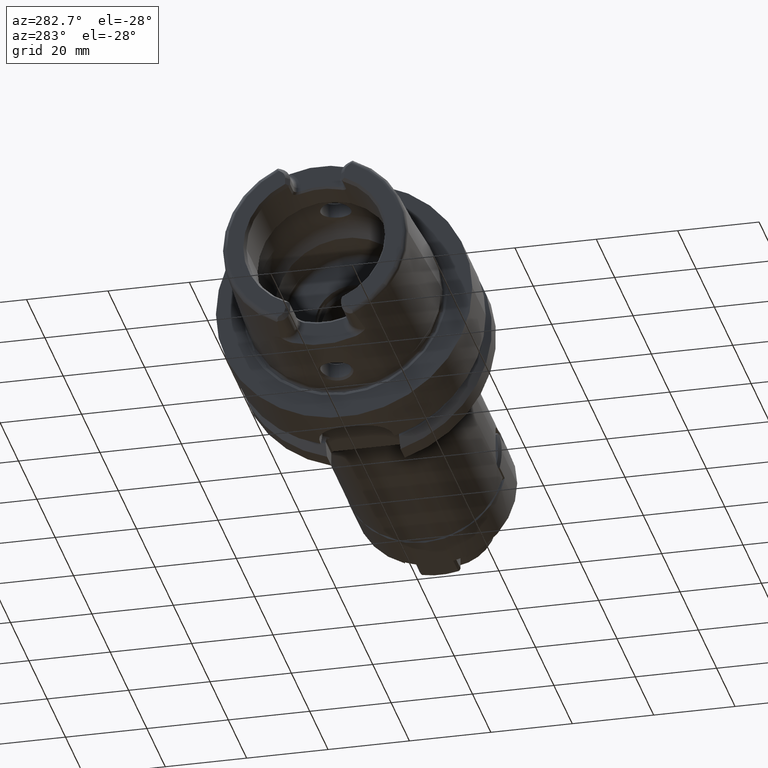
[diagram: clean part render]
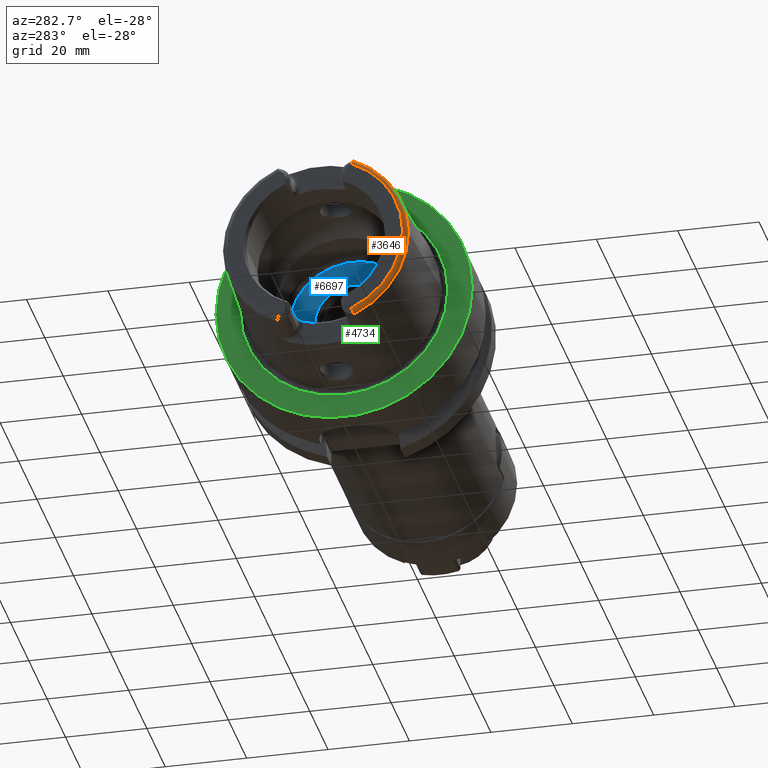
[diagram: same view with three faces highlighted in distinct colors, each labeled with its STEP entity id]
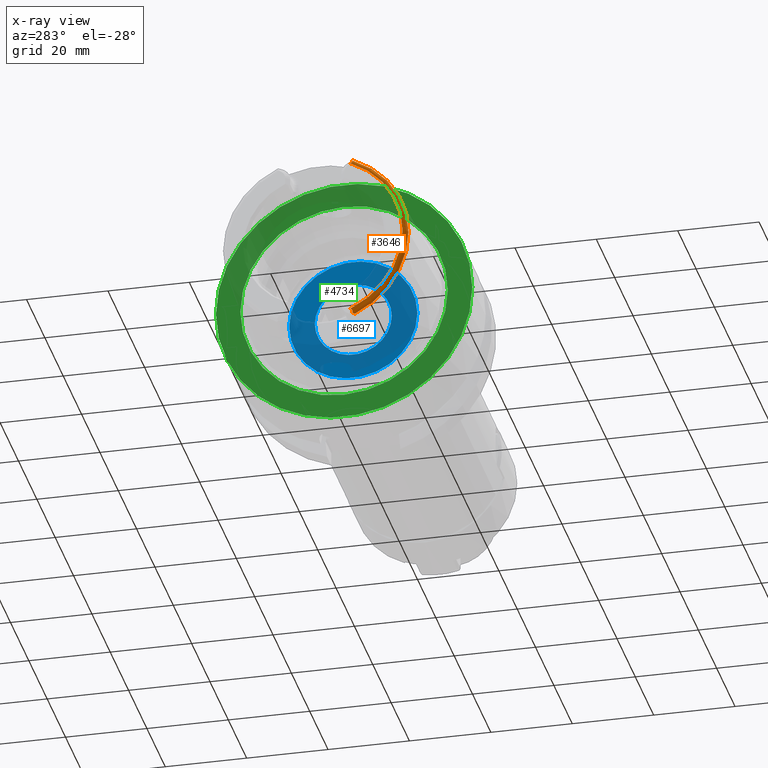
[diagram: x-ray of the same camera — body ghosted, the three highlighted faces saturated]
A machine part, auxiliary view with three faces highlighted in distinct colors.
The next image is the same camera in x-ray (body ghosted, the three faces saturated) — at least one of them is partly hidden behind the body in this view.
Their STEP definitions:

[orange] entity #3646 — the highlighted toroidal blend (fillet) surface has major radius 21.5761 mm and minor (blend) radius 1.2 mm.
#220=CARTESIAN_POINT('',(-3.2E1,-8.752868121732E0,-1.972091419616E1));
#221=CARTESIAN_POINT('',(-3.2E1,-8.806191392107E0,-1.975573003538E1));
#222=CARTESIAN_POINT('',(-3.199307728065E1,-8.906838058357E0,
-1.982971194007E1));
#223=CARTESIAN_POINT('',(-3.195660462370E1,-9.041248816786E0,
-1.996103000182E1));
#224=CARTESIAN_POINT('',(-3.189040233195E1,-9.144202826203E0,
-2.010731482616E1));
#225=CARTESIAN_POINT('',(-3.179646342749E1,-9.206041881340E0,
-2.025988014952E1));
#226=CARTESIAN_POINT('',(-3.168160529070E1,-9.224292971301E0,
-2.040896943202E1));
#227=CARTESIAN_POINT('',(-3.155472601909E1,-9.203436757989E0,
-2.054688136818E1));
#228=CARTESIAN_POINT('',(-3.146778482605E1,-9.169293416595E0,
-2.062842062115E1));
#229=CARTESIAN_POINT('',(-3.142329832300E1,-9.147789680232E0,
-2.066750973939E1));
#231=CARTESIAN_POINT('',(-3.2E1,0.E0,0.E0));
#232=DIRECTION('',(-1.E0,0.E0,0.E0));
#233=DIRECTION('',(0.E0,-4.056746540583E-1,-9.140175463604E-1));
#234=AXIS2_PLACEMENT_3D('',#231,#232,#233);
#236=CARTESIAN_POINT('',(-3.142329832300E1,-9.147789680232E0,2.066750973939E1));
#237=CARTESIAN_POINT('',(-3.146785463680E1,-9.169327161481E0,2.062835928028E1));
#238=CARTESIAN_POINT('',(-3.155487993536E1,-9.203474960428E0,2.054672249220E1));
#239=CARTESIAN_POINT('',(-3.168154941819E1,-9.224273580731E0,2.040902349895E1));
#240=CARTESIAN_POINT('',(-3.179638971845E1,-9.206079697358E0,2.025999286960E1));
#241=CARTESIAN_POINT('',(-3.189041365611E1,-9.144200972137E0,2.010730009138E1));
#242=CARTESIAN_POINT('',(-3.195659880516E1,-9.041253650427E0,1.996104010677E1));
#243=CARTESIAN_POINT('',(-3.199307626724E1,-8.906850532423E0,1.982972129493E1));
#244=CARTESIAN_POINT('',(-3.2E1,-8.806197293584E0,1.975573388857E1));
#245=CARTESIAN_POINT('',(-3.2E1,-8.752868121732E0,1.972091419616E1));
#247=CARTESIAN_POINT('',(-3.132832518959E1,-9.27E0,2.067E1));
#248=CARTESIAN_POINT('',(-3.134450759901E1,-9.250608646179E0,2.067E1));
#249=CARTESIAN_POINT('',(-3.137648814066E1,-9.210816796832E0,2.066962390252E1));
#250=CARTESIAN_POINT('',(-3.140779600340E1,-9.169107457374E0,2.066837887831E1));
#251=CARTESIAN_POINT('',(-3.142329832300E1,-9.147789680232E0,2.066750973939E1));
#253=CARTESIAN_POINT('',(-3.086004306431E1,-9.562027931336E0,2.067E1));
#254=CARTESIAN_POINT('',(-3.089908117982E1,-9.557369764332E0,2.067E1));
#255=CARTESIAN_POINT('',(-3.097780815735E1,-9.539070199208E0,2.067E1));
#256=CARTESIAN_POINT('',(-3.110050491135E1,-9.479694699778E0,2.067E1));
#257=CARTESIAN_POINT('',(-3.121836320761E1,-9.390392333018E0,2.067E1));
#258=CARTESIAN_POINT('',(-3.129230837722E1,-9.313158885277E0,2.067E1));
#259=CARTESIAN_POINT('',(-3.132832518959E1,-9.27E0,2.067E1));
#261=CARTESIAN_POINT('',(-3.086004306431E1,0.E0,0.E0));
#262=DIRECTION('',(1.E0,0.E0,0.E0));
#263=DIRECTION('',(0.E0,-4.198553792210E-1,9.075910205259E-1));
#264=AXIS2_PLACEMENT_3D('',#261,#262,#263);
#266=CARTESIAN_POINT('',(-3.086004306431E1,0.E0,0.E0));
#267=DIRECTION('',(-1.E0,0.E0,0.E0));
#268=DIRECTION('',(0.E0,-4.198553792210E-1,-9.075910205259E-1));
#269=AXIS2_PLACEMENT_3D('',#266,#267,#268);
#271=CARTESIAN_POINT('',(-3.132832518959E1,-9.27E0,-2.067E1));
#272=CARTESIAN_POINT('',(-3.129225458868E1,-9.313223339992E0,-2.067E1));
#273=CARTESIAN_POINT('',(-3.121820569130E1,-9.390519030682E0,-2.067E1));
#274=CARTESIAN_POINT('',(-3.110062643974E1,-9.479612323317E0,-2.067E1));
#275=CARTESIAN_POINT('',(-3.097775607391E1,-9.539101836846E0,-2.067E1));
#276=CARTESIAN_POINT('',(-3.089906305674E1,-9.557371926843E0,-2.067E1));
#277=CARTESIAN_POINT('',(-3.086004306431E1,-9.562027931336E0,-2.067E1));
#279=CARTESIAN_POINT('',(-3.142329832300E1,-9.147789680232E0,
-2.066750973939E1));
#280=CARTESIAN_POINT('',(-3.140773724452E1,-9.169188258734E0,
-2.066838217263E1));
#281=CARTESIAN_POINT('',(-3.137636553203E1,-9.210974971125E0,
-2.066962696388E1));
#282=CARTESIAN_POINT('',(-3.134444355624E1,-9.250685388521E0,-2.067E1));
#283=CARTESIAN_POINT('',(-3.132832518959E1,-9.27E0,-2.067E1));
#2968=CARTESIAN_POINT('',(-3.086004306431E1,-2.277457525750E1,0.E0));
#2969=VERTEX_POINT('',#2968);
#3008=CARTESIAN_POINT('',(-3.086004306431E1,-9.562027931336E0,2.067E1));
#3009=VERTEX_POINT('',#3008);
#3010=VERTEX_POINT('',#259);
#3046=VERTEX_POINT('',#251);
#3055=CARTESIAN_POINT('',(-3.2E1,-8.752868121732E0,1.972091419616E1));
#3056=VERTEX_POINT('',#3055);
#3089=CARTESIAN_POINT('',(-3.086004306431E1,-9.562027931336E0,-2.067E1));
#3090=VERTEX_POINT('',#3089);
#3091=VERTEX_POINT('',#271);
#3152=CARTESIAN_POINT('',(-3.2E1,-8.752868121732E0,-1.972091419616E1));
#3153=VERTEX_POINT('',#3152);
#3154=VERTEX_POINT('',#229);
#3624=CARTESIAN_POINT('',(-3.08E1,0.E0,0.E0));
#3625=DIRECTION('',(1.E0,0.E0,0.E0));
#3626=DIRECTION('',(0.E0,-1.E0,0.E0));
#3627=AXIS2_PLACEMENT_3D('',#3624,#3625,#3626);
#3628=TOROIDAL_SURFACE('',#3627,2.157607835286E1,1.2E0);
#3630=ORIENTED_EDGE('',*,*,#3629,.F.);
#3632=ORIENTED_EDGE('',*,*,#3631,.T.);
#3634=ORIENTED_EDGE('',*,*,#3633,.F.);
#3635=ORIENTED_EDGE('',*,*,#3587,.F.);
#3636=ORIENTED_EDGE('',*,*,#3517,.F.);
#3637=ORIENTED_EDGE('',*,*,#3498,.T.);
#3639=ORIENTED_EDGE('',*,*,#3638,.F.);
#3641=ORIENTED_EDGE('',*,*,#3640,.F.);
#3643=ORIENTED_EDGE('',*,*,#3642,.F.);
#3644=EDGE_LOOP('',(#3630,#3632,#3634,#3635,#3636,#3637,#3639,#3641,#3643));
#3645=FACE_OUTER_BOUND('',#3644,.F.);
#3646=ADVANCED_FACE('',(#3645),#3628,.T.);
#230=B_SPLINE_CURVE_WITH_KNOTS('',3,(#220,#221,#222,#223,#224,#225,#226,#227,
#228,#229),.UNSPECIFIED.,.F.,.F.,(4,1,1,1,1,1,1,4),(0.E0,1.428571428571E-1,
2.857142857143E-1,4.285714285714E-1,5.714285714286E-1,7.142857142857E-1,
8.571428571429E-1,1.E0),.UNSPECIFIED.);
#235=CIRCLE('',#234,2.157607835286E1);
#246=B_SPLINE_CURVE_WITH_KNOTS('',3,(#236,#237,#238,#239,#240,#241,#242,#243,
#244,#245),.UNSPECIFIED.,.F.,.F.,(4,1,1,1,1,1,1,4),(0.E0,1.428571428571E-1,
2.857142857143E-1,4.285714285714E-1,5.714285714286E-1,7.142857142857E-1,
8.571428571429E-1,1.E0),.UNSPECIFIED.);
#252=B_SPLINE_CURVE_WITH_KNOTS('',3,(#247,#248,#249,#250,#251),.UNSPECIFIED.,
.F.,.F.,(4,1,4),(0.E0,5.E-1,1.E0),.UNSPECIFIED.);
#260=B_SPLINE_CURVE_WITH_KNOTS('',3,(#253,#254,#255,#256,#257,#258,#259),
.UNSPECIFIED.,.F.,.F.,(4,1,1,1,4),(0.E0,2.5E-1,5.E-1,7.5E-1,1.E0),
.UNSPECIFIED.);
#265=CIRCLE('',#264,2.277457525750E1);
#270=CIRCLE('',#269,2.277457525750E1);
#278=B_SPLINE_CURVE_WITH_KNOTS('',3,(#271,#272,#273,#274,#275,#276,#277),
.UNSPECIFIED.,.F.,.F.,(4,1,1,1,4),(0.E0,2.5E-1,5.E-1,7.5E-1,1.E0),
.UNSPECIFIED.);
#284=B_SPLINE_CURVE_WITH_KNOTS('',3,(#279,#280,#281,#282,#283),.UNSPECIFIED.,
.F.,.F.,(4,1,4),(0.E0,5.E-1,1.E0),.UNSPECIFIED.);
#3498=EDGE_CURVE('',#3009,#2969,#265,.T.);
#3517=EDGE_CURVE('',#3009,#3010,#260,.T.);
#3587=EDGE_CURVE('',#3010,#3046,#252,.T.);
#3629=EDGE_CURVE('',#3153,#3154,#230,.T.);
#3631=EDGE_CURVE('',#3153,#3056,#235,.T.);
#3633=EDGE_CURVE('',#3046,#3056,#246,.T.);
#3638=EDGE_CURVE('',#3090,#2969,#270,.T.);
#3640=EDGE_CURVE('',#3091,#3090,#278,.T.);
#3642=EDGE_CURVE('',#3154,#3091,#284,.T.);

[blue] entity #6697 — the highlighted planar face has unit normal (1, 0, 0).
#2746=CARTESIAN_POINT('',(1.E1,0.E0,0.E0));
#2747=DIRECTION('',(1.E0,0.E0,0.E0));
#2748=DIRECTION('',(0.E0,1.E0,0.E0));
#2749=AXIS2_PLACEMENT_3D('',#2746,#2747,#2748);
#2756=CARTESIAN_POINT('',(1.E1,0.E0,0.E0));
#2757=DIRECTION('',(-1.E0,0.E0,0.E0));
#2758=DIRECTION('',(0.E0,1.E0,0.E0));
#2759=AXIS2_PLACEMENT_3D('',#2756,#2757,#2758);
#2766=CARTESIAN_POINT('',(1.E1,0.E0,0.E0));
#2767=DIRECTION('',(1.E0,0.E0,0.E0));
#2768=DIRECTION('',(0.E0,1.E0,0.E0));
#2769=AXIS2_PLACEMENT_3D('',#2766,#2767,#2768);
#2771=CARTESIAN_POINT('',(1.E1,0.E0,0.E0));
#2772=DIRECTION('',(1.E0,0.E0,0.E0));
#2773=DIRECTION('',(0.E0,-1.E0,0.E0));
#2774=AXIS2_PLACEMENT_3D('',#2771,#2772,#2773);
#2974=CARTESIAN_POINT('',(1.E1,1.575E1,0.E0));
#2976=VERTEX_POINT('',#2974);
#2978=CARTESIAN_POINT('',(1.E1,-1.575E1,0.E0));
#2980=VERTEX_POINT('',#2978);
#3225=CARTESIAN_POINT('',(1.E1,9.451175134595E0,0.E0));
#3226=CARTESIAN_POINT('',(1.E1,-9.451175134595E0,0.E0));
#3227=VERTEX_POINT('',#3225);
#3228=VERTEX_POINT('',#3226);
#6682=CARTESIAN_POINT('',(1.E1,0.E0,0.E0));
#6683=DIRECTION('',(1.E0,0.E0,0.E0));
#6684=DIRECTION('',(0.E0,-1.E0,0.E0));
#6685=AXIS2_PLACEMENT_3D('',#6682,#6683,#6684);
#6686=PLANE('',#6685);
#6687=ORIENTED_EDGE('',*,*,#6664,.T.);
#6688=ORIENTED_EDGE('',*,*,#6675,.F.);
#6689=EDGE_LOOP('',(#6687,#6688));
#6690=FACE_OUTER_BOUND('',#6689,.F.);
#6692=ORIENTED_EDGE('',*,*,#6691,.F.);
#6694=ORIENTED_EDGE('',*,*,#6693,.F.);
#6695=EDGE_LOOP('',(#6692,#6694));
#6696=FACE_BOUND('',#6695,.F.);
#6697=ADVANCED_FACE('',(#6690,#6696),#6686,.F.);
#2750=CIRCLE('',#2749,1.575E1);
#2760=CIRCLE('',#2759,1.575E1);
#2770=CIRCLE('',#2769,9.451175134595E0);
#2775=CIRCLE('',#2774,9.451175134595E0);
#6664=EDGE_CURVE('',#2976,#2980,#2750,.T.);
#6675=EDGE_CURVE('',#2976,#2980,#2760,.T.);
#6691=EDGE_CURVE('',#3227,#3228,#2770,.T.);
#6693=EDGE_CURVE('',#3228,#3227,#2775,.T.);

[green] entity #4734 — the highlighted planar face has unit normal (1, 0, 0).
#1068=CARTESIAN_POINT('',(-1.421085471520E-14,0.E0,0.E0));
#1069=DIRECTION('',(1.E0,0.E0,0.E0));
#1070=DIRECTION('',(0.E0,1.E0,0.E0));
#1071=AXIS2_PLACEMENT_3D('',#1068,#1069,#1070);
#1073=CARTESIAN_POINT('',(-1.421085471520E-14,0.E0,0.E0));
#1074=DIRECTION('',(-1.E0,0.E0,0.E0));
#1075=DIRECTION('',(0.E0,1.E0,0.E0));
#1076=AXIS2_PLACEMENT_3D('',#1073,#1074,#1075);
#1078=CARTESIAN_POINT('',(0.E0,0.E0,0.E0));
#1079=DIRECTION('',(-1.E0,0.E0,0.E0));
#1080=DIRECTION('',(0.E0,-1.E0,0.E0));
#1081=AXIS2_PLACEMENT_3D('',#1078,#1079,#1080);
#1083=CARTESIAN_POINT('',(0.E0,0.E0,0.E0));
#1084=DIRECTION('',(-1.E0,0.E0,0.E0));
#1085=DIRECTION('',(0.E0,1.E0,0.E0));
#1086=AXIS2_PLACEMENT_3D('',#1083,#1084,#1085);
#2942=CARTESIAN_POINT('',(-1.421085471520E-14,3.15E1,0.E0));
#2943=CARTESIAN_POINT('',(-1.421085471520E-14,-3.15E1,0.E0));
#2944=VERTEX_POINT('',#2942);
#2945=VERTEX_POINT('',#2943);
#2970=CARTESIAN_POINT('',(0.E0,-2.549042414966E1,0.E0));
#2971=VERTEX_POINT('',#2970);
#2972=CARTESIAN_POINT('',(0.E0,2.549042414966E1,0.E0));
#2973=VERTEX_POINT('',#2972);
#4719=CARTESIAN_POINT('',(0.E0,0.E0,0.E0));
#4720=DIRECTION('',(1.E0,0.E0,0.E0));
#4721=DIRECTION('',(0.E0,-1.E0,0.E0));
#4722=AXIS2_PLACEMENT_3D('',#4719,#4720,#4721);
#4723=PLANE('',#4722);
#4725=ORIENTED_EDGE('',*,*,#4724,.T.);
#4727=ORIENTED_EDGE('',*,*,#4726,.F.);
#4728=EDGE_LOOP('',(#4725,#4727));
#4729=FACE_OUTER_BOUND('',#4728,.F.);
#4730=ORIENTED_EDGE('',*,*,#4714,.T.);
#4731=ORIENTED_EDGE('',*,*,#4698,.T.);
#4732=EDGE_LOOP('',(#4730,#4731));
#4733=FACE_BOUND('',#4732,.F.);
#4734=ADVANCED_FACE('',(#4729,#4733),#4723,.F.);
#1072=CIRCLE('',#1071,3.15E1);
#1077=CIRCLE('',#1076,3.15E1);
#1082=CIRCLE('',#1081,2.549042414966E1);
#1087=CIRCLE('',#1086,2.549042414966E1);
#4698=EDGE_CURVE('',#2973,#2971,#1087,.T.);
#4714=EDGE_CURVE('',#2971,#2973,#1082,.T.);
#4724=EDGE_CURVE('',#2944,#2945,#1072,.T.);
#4726=EDGE_CURVE('',#2944,#2945,#1077,.T.);